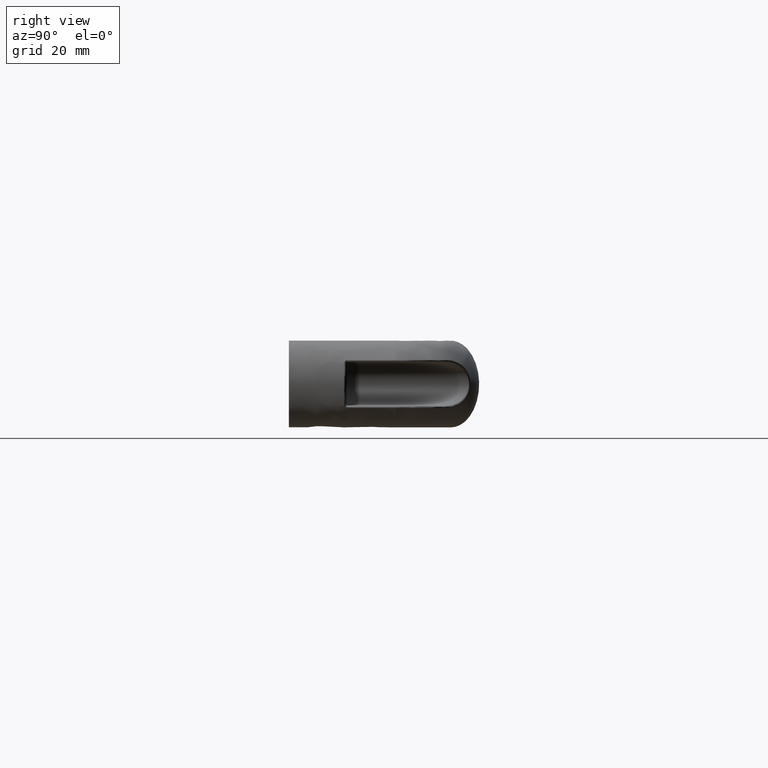
[diagram: clean part render]
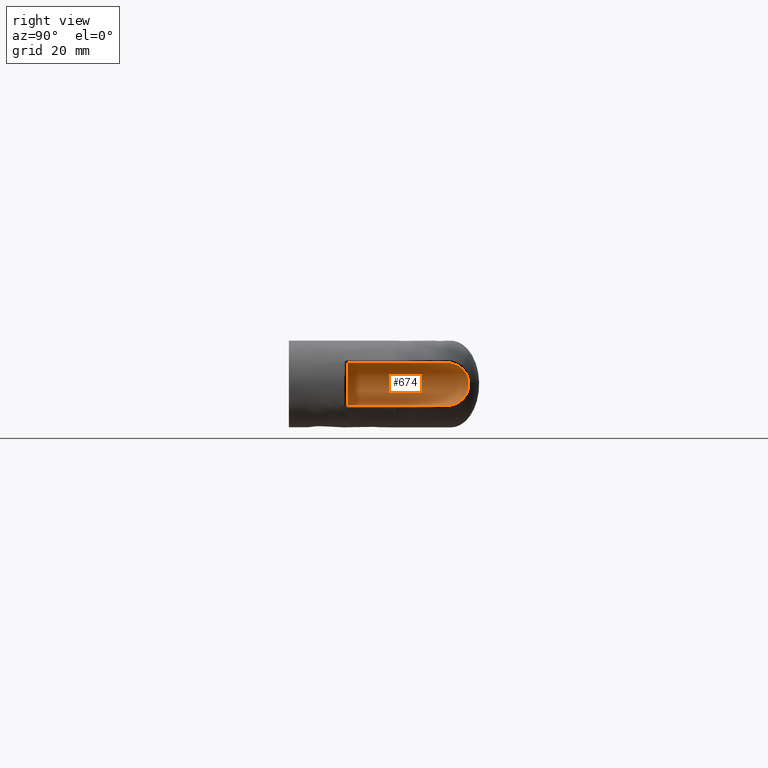
[diagram: same view with one face highlighted and labeled with its STEP entity id]
A machine part, right view. The second image highlights one B-rep face of the part: STEP entity #674.
In plain terms, the highlighted cylindrical surface (edge-blend (fillet) strip) has radius 6.5 mm, axis along (0, -1, 0).
Its self-contained STEP definition (entity closure, byte-faithful):
#38=CYLINDRICAL_SURFACE('',#731,6.5);
#55=LINE('',#1080,#77);
#60=LINE('',#1096,#82);
#77=VECTOR('',#829,29.0082159809617);
#82=VECTOR('',#836,29.0082159809616);
#113=CIRCLE('',#732,6.5);
#167=FACE_OUTER_BOUND('',#217,.T.);
#217=EDGE_LOOP('',(#495,#496,#497,#498));
#281=B_SPLINE_CURVE_WITH_KNOTS('',3,(#1098,#1099,#1100,#1101,#1102,#1103,
#1104,#1105,#1106,#1107,#1108,#1109),.UNSPECIFIED.,.F.,.F.,(4,1,1,1,1,1,
1,1,1,4),(1.97555219500692E-11,0.391019060009875,0.782038119999995,0.977547649995054,
1.17305717999011,1.36856670998517,1.56407623998023,1.95509529997035,2.34611435996047,
2.73713341995059),.UNSPECIFIED.);
#323=VERTEX_POINT('',#1072);
#325=VERTEX_POINT('',#1079);
#328=VERTEX_POINT('',#1086);
#330=VERTEX_POINT('',#1094);
#388=EDGE_CURVE('',#323,#325,#55,.T.);
#394=EDGE_CURVE('',#328,#330,#60,.T.);
#395=EDGE_CURVE('',#328,#323,#281,.T.);
#396=EDGE_CURVE('',#325,#330,#113,.T.);
#495=ORIENTED_EDGE('',*,*,#395,.F.);
#496=ORIENTED_EDGE('',*,*,#394,.T.);
#497=ORIENTED_EDGE('',*,*,#396,.F.);
#498=ORIENTED_EDGE('',*,*,#388,.F.);
#674=ADVANCED_FACE('',(#167),#38,.F.);
#731=AXIS2_PLACEMENT_3D('',#1097,#837,#838);
#732=AXIS2_PLACEMENT_3D('',#1110,#839,#840);
#829=DIRECTION('',(0.,-1.,0.));
#836=DIRECTION('',(0.,-1.,0.));
#837=DIRECTION('center_axis',(0.,-1.,0.));
#838=DIRECTION('ref_axis',(0.,0.,-1.));
#839=DIRECTION('center_axis',(0.,1.,0.));
#840=DIRECTION('ref_axis',(-1.,0.,-6.12323399573678E-17));
#1072=CARTESIAN_POINT('',(194.500000000083,46.5082159809617,-6.49999999999999));
#1079=CARTESIAN_POINT('',(194.5,17.5,-6.49999999999999));
#1080=CARTESIAN_POINT('',(194.5,57.,-6.49999999999999));
#1086=CARTESIAN_POINT('',(194.50000000009,46.5082159809616,6.50000000000001));
#1094=CARTESIAN_POINT('',(194.5,17.5,6.50000000000001));
#1096=CARTESIAN_POINT('',(194.5,57.,6.50000000000001));
#1097=CARTESIAN_POINT('Origin',(194.5,57.,9.95025524307224E-15));
#1098=CARTESIAN_POINT('Ctrl Pts',(194.500000000152,46.5082159809809,6.50000000000001));
#1099=CARTESIAN_POINT('Ctrl Pts',(193.74048406963,47.5230150583374,6.50000000001776));
#1100=CARTESIAN_POINT('Ctrl Pts',(192.154865496726,49.4930409852729,6.23774077621545));
#1101=CARTESIAN_POINT('Ctrl Pts',(190.175892965574,51.6822404746058,5.0332622243473));
#1102=CARTESIAN_POINT('Ctrl Pts',(188.872023714788,53.0290357411625,3.3895202712539));
#1103=CARTESIAN_POINT('Ctrl Pts',(188.174420286684,53.7226324598691,1.81398298463042));
#1104=CARTESIAN_POINT('Ctrl Pts',(187.912476605208,53.9765761422985,0.00389610188064576));
#1105=CARTESIAN_POINT('Ctrl Pts',(188.261095021414,53.6385804250278,-2.42470743794716));
#1106=CARTESIAN_POINT('Ctrl Pts',(189.785070428575,52.1165503532323,-4.80497067572917));
#1107=CARTESIAN_POINT('Ctrl Pts',(192.150950209576,49.496069820347,-6.23086767184471));
#1108=CARTESIAN_POINT('Ctrl Pts',(193.740484069645,47.5230150583188,-6.50000000001942));
#1109=CARTESIAN_POINT('Ctrl Pts',(194.500000000166,46.5082159809617,-6.49999999999999));
#1110=CARTESIAN_POINT('Origin',(194.5,17.5,9.95025524307224E-15));